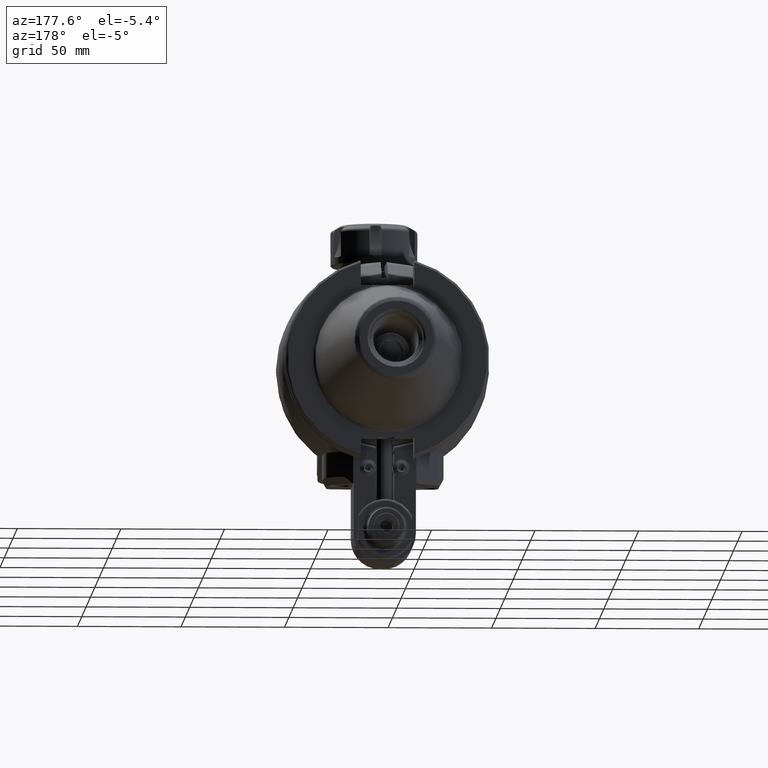
[diagram: clean part render]
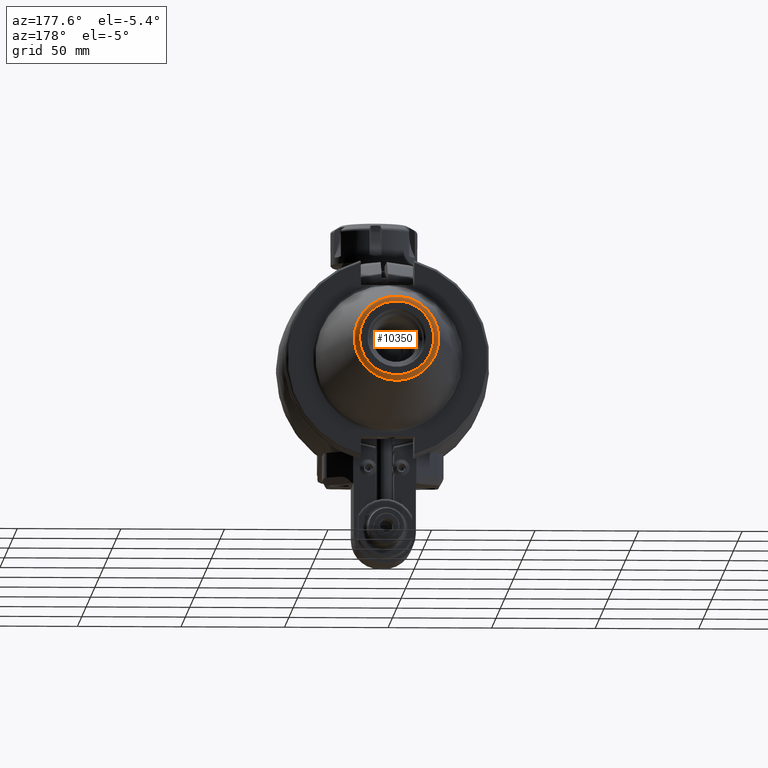
[diagram: same view with one face highlighted and labeled with its STEP entity id]
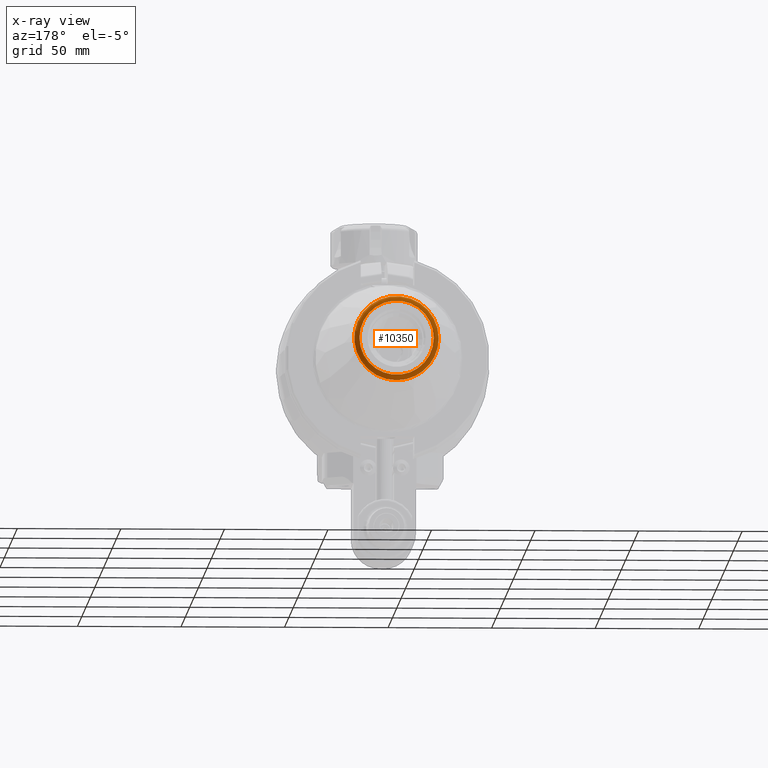
[diagram: x-ray of the same camera — body ghosted, the highlighted face saturated]
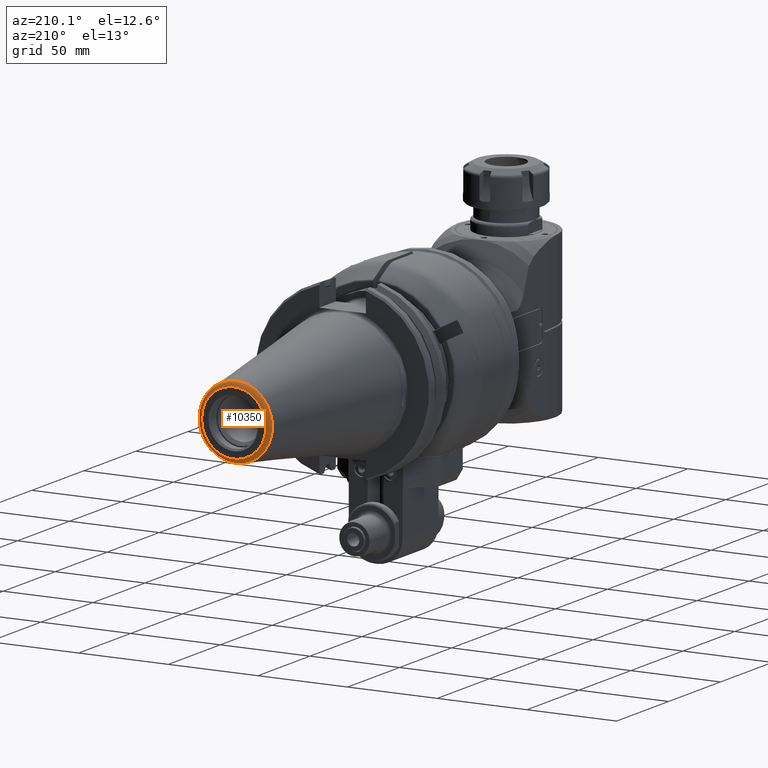
[diagram: same view with one face highlighted and labeled with its STEP entity id]
A machine part, auxiliary view. The second image highlights one B-rep face of the part: STEP entity #10350.
The next image is the same camera in x-ray: the body ghosted, the highlighted face saturated — about 0% of this face is hidden behind the body in this view.
A second angle (auxiliary view) of the same face is appended — the face is thin or edge-on in the first view.
In plain terms, the highlighted toroidal blend (fillet) surface has major radius 17.9465 mm and minor (blend) radius 2.5 mm.
Its self-contained STEP definition (entity closure, byte-faithful):
#248=TOROIDAL_SURFACE('',#11589,17.94648113662,2.5);
#1269=CIRCLE('',#11587,20.42031362057);
#1270=CIRCLE('',#11588,20.42031362057);
#1271=CIRCLE('',#11590,2.5);
#1272=CIRCLE('',#11591,17.94648113662);
#1847=FACE_OUTER_BOUND('',#2540,.T.);
#2540=EDGE_LOOP('',(#9190,#9191,#9192,#9193,#9194));
#4877=VERTEX_POINT('',#20823);
#4878=VERTEX_POINT('',#20825);
#4879=VERTEX_POINT('',#20829);
#6342=EDGE_CURVE('',#4878,#4877,#1269,.T.);
#6343=EDGE_CURVE('',#4877,#4878,#1270,.T.);
#6344=EDGE_CURVE('',#4878,#4879,#1271,.T.);
#6345=EDGE_CURVE('',#4879,#4879,#1272,.T.);
#9190=ORIENTED_EDGE('',*,*,#6342,.T.);
#9191=ORIENTED_EDGE('',*,*,#6343,.T.);
#9192=ORIENTED_EDGE('',*,*,#6344,.T.);
#9193=ORIENTED_EDGE('',*,*,#6345,.F.);
#9194=ORIENTED_EDGE('',*,*,#6344,.F.);
#10350=ADVANCED_FACE('',(#1847),#248,.T.);
#11587=AXIS2_PLACEMENT_3D('',#20826,#14512,#14513);
#11588=AXIS2_PLACEMENT_3D('',#20827,#14514,#14515);
#11589=AXIS2_PLACEMENT_3D('',#20828,#14516,#14517);
#11590=AXIS2_PLACEMENT_3D('',#20830,#14518,#14519);
#11591=AXIS2_PLACEMENT_3D('',#20831,#14520,#14521);
#14512=DIRECTION('center_axis',(0.,1.,0.));
#14513=DIRECTION('ref_axis',(0.,0.,1.));
#14514=DIRECTION('center_axis',(0.,1.,0.));
#14515=DIRECTION('ref_axis',(0.,0.,1.));
#14516=DIRECTION('center_axis',(0.,-1.,0.));
#14517=DIRECTION('ref_axis',(1.,0.,0.));
#14518=DIRECTION('center_axis',(1.22464679914735E-16,0.,-1.));
#14519=DIRECTION('ref_axis',(-1.,0.,-1.22464679914735E-16));
#14520=DIRECTION('center_axis',(0.,1.,0.));
#14521=DIRECTION('ref_axis',(0.,0.,1.));
#20823=CARTESIAN_POINT('',(2.50076717129998E-15,173.960767018098,-20.4203136205566));
#20825=CARTESIAN_POINT('',(-20.42031362057,173.9607670181,-2.50076717130162E-15));
#20826=CARTESIAN_POINT('Origin',(0.,173.9607670181,0.));
#20827=CARTESIAN_POINT('Origin',(0.,173.9607670181,0.));
#20828=CARTESIAN_POINT('Origin',(0.,173.6,0.));
#20829=CARTESIAN_POINT('',(-17.94648113662,176.1,-2.197810067992E-15));
#20830=CARTESIAN_POINT('Origin',(-17.94648113662,173.6,-2.197810067992E-15));
#20831=CARTESIAN_POINT('Origin',(0.,176.1,0.));